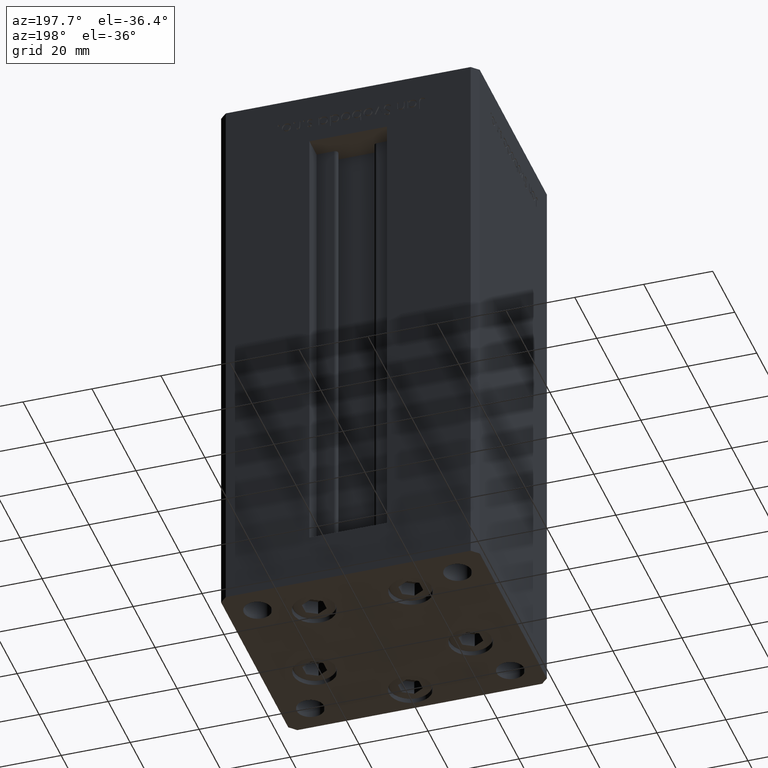
[diagram: clean part render]
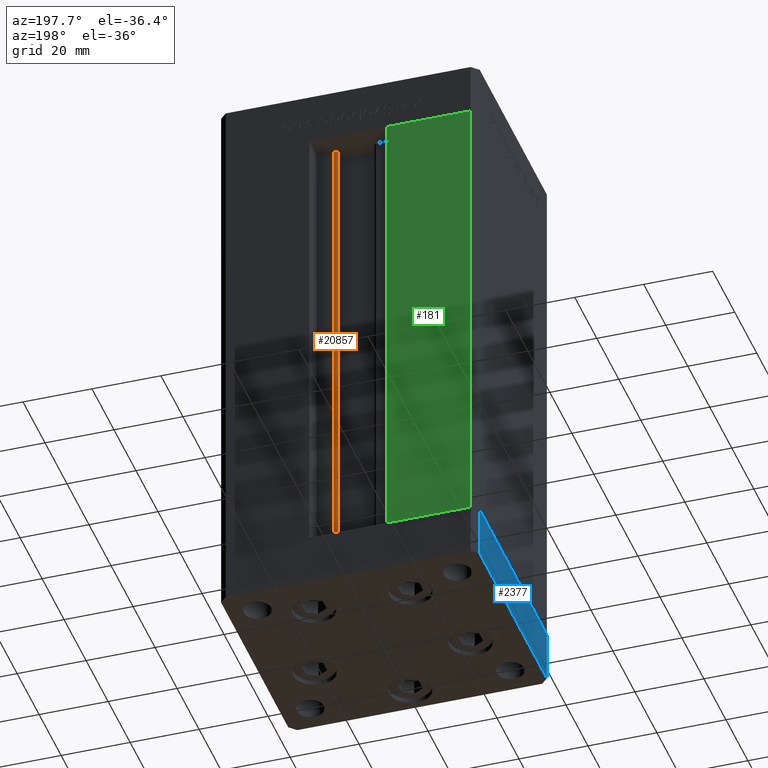
[diagram: same view with three faces highlighted in distinct colors, each labeled with its STEP entity id]
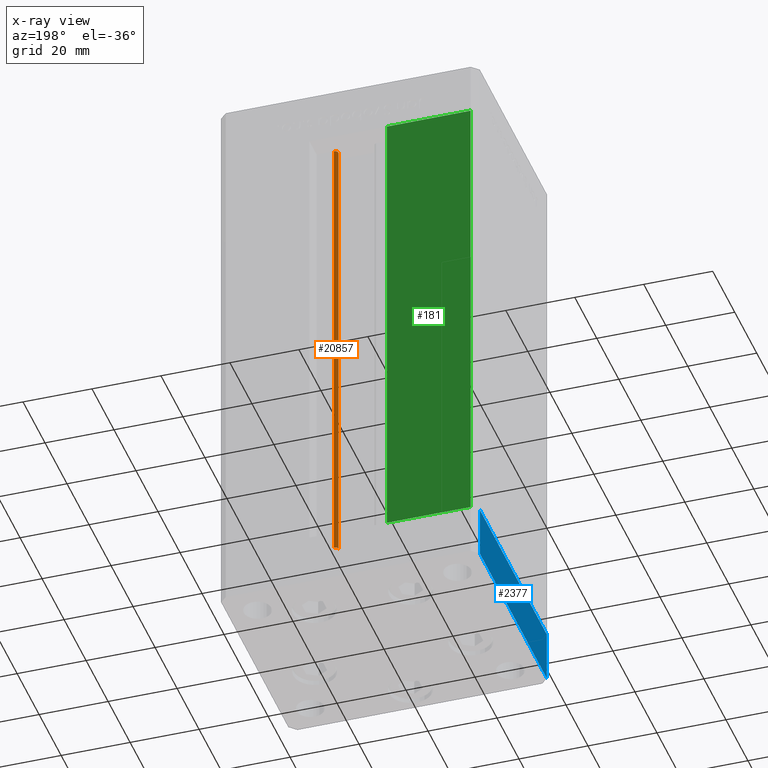
[diagram: x-ray of the same camera — body ghosted, the three highlighted faces saturated]
A machine part, auxiliary view with three faces highlighted in distinct colors.
The next image is the same camera in x-ray (body ghosted, the three faces saturated) — at least one of them is partly hidden behind the body in this view.
Their STEP definitions:

[orange] entity #20857 — the highlighted cylindrical surface (edge-blend (fillet) strip) has radius 0.9333 mm, axis along (0, 0, 1).
#2117 = EDGE_CURVE ( 'NONE', #26774, #39655, #47410, .T. ) ;
#2461 = EDGE_CURVE ( 'NONE', #39655, #33214, #25178, .T. ) ;
#5537 = AXIS2_PLACEMENT_3D ( 'NONE', #48494, #24500, #20547 ) ;
#6083 = DIRECTION ( 'NONE',  ( -0.000000000000000000, -0.000000000000000000, 1.000000000000000000 ) ) ;
#8797 = DIRECTION ( 'NONE',  ( 0.000000000000000000, 0.000000000000000000, -1.000000000000000000 ) ) ;
#8900 = FACE_OUTER_BOUND ( 'NONE', #9518, .T. ) ;
#9326 = CARTESIAN_POINT ( 'NONE',  ( 6.183333333334001480, 25.06666666666599141, 136.0000000000000000 ) ) ;
#9518 = EDGE_LOOP ( 'NONE', ( #38304, #51495, #26401, #27293 ) ) ;
#10561 = CARTESIAN_POINT ( 'NONE',  ( 6.183333333334001480, 25.99999999999999289, 0.000000000000000000 ) ) ;
#12370 = CIRCLE ( 'NONE', #35970, 0.9333333333340008142 ) ;
#17903 = VERTEX_POINT ( 'NONE', #25320 ) ;
#20547 = DIRECTION ( 'NONE',  ( 1.000000000000000000, 0.000000000000000000, 0.000000000000000000 ) ) ;
#20857 = ADVANCED_FACE ( 'NONE', ( #8900 ), #36871, .T. ) ;
#23162 = DIRECTION ( 'NONE',  ( 1.000000000000000000, 0.000000000000000000, 0.000000000000000000 ) ) ;
#24500 = DIRECTION ( 'NONE',  ( -0.000000000000000000, -0.000000000000000000, 1.000000000000000000 ) ) ;
#25178 = CIRCLE ( 'NONE', #41296, 0.9333333333340008142 ) ;
#25320 = CARTESIAN_POINT ( 'NONE',  ( 6.183333333334001480, 25.99999999999999289, 0.000000000000000000 ) ) ;
#26401 = ORIENTED_EDGE ( 'NONE', *, *, #2117, .T. ) ;
#26774 = VERTEX_POINT ( 'NONE', #34937 ) ;
#27293 = ORIENTED_EDGE ( 'NONE', *, *, #2461, .T. ) ;
#28116 = EDGE_CURVE ( 'NONE', #17903, #33214, #46208, .T. ) ;
#30049 = CARTESIAN_POINT ( 'NONE',  ( 5.375042956467948052, 24.59999999999899245, 136.0000000000000000 ) ) ;
#30804 = CARTESIAN_POINT ( 'NONE',  ( 6.183333333334001480, 25.06666666666599141, 0.000000000000000000 ) ) ;
#31906 = VECTOR ( 'NONE', #6083, 1000.000000000000000 ) ;
#33214 = VERTEX_POINT ( 'NONE', #34285 ) ;
#34285 = CARTESIAN_POINT ( 'NONE',  ( 6.183333333334001480, 25.99999999999999289, 136.0000000000000000 ) ) ;
#34937 = CARTESIAN_POINT ( 'NONE',  ( 5.375042956467947164, 24.59999999999899245, 0.000000000000000000 ) ) ;
#35526 = CARTESIAN_POINT ( 'NONE',  ( 5.375042956467947164, 24.59999999999899245, 0.000000000000000000 ) ) ;
#35970 = AXIS2_PLACEMENT_3D ( 'NONE', #30804, #46898, #23162 ) ;
#36871 = CYLINDRICAL_SURFACE ( 'NONE', #5537, 0.9333333333340008142 ) ;
#38304 = ORIENTED_EDGE ( 'NONE', *, *, #28116, .F. ) ;
#39655 = VERTEX_POINT ( 'NONE', #30049 ) ;
#40493 = DIRECTION ( 'NONE',  ( 1.000000000000000000, 0.000000000000000000, 0.000000000000000000 ) ) ;
#41296 = AXIS2_PLACEMENT_3D ( 'NONE', #9326, #8797, #40493 ) ;
#46208 = LINE ( 'NONE', #10561, #31906 ) ;
#46898 = DIRECTION ( 'NONE',  ( -0.000000000000000000, -0.000000000000000000, -1.000000000000000000 ) ) ;
#47346 = EDGE_CURVE ( 'NONE', #26774, #17903, #12370, .T. ) ;
#47410 = LINE ( 'NONE', #35526, #49690 ) ;
#48494 = CARTESIAN_POINT ( 'NONE',  ( 6.183333333334001480, 25.06666666666599141, 0.000000000000000000 ) ) ;
#49690 = VECTOR ( 'NONE', #51615, 1000.000000000000000 ) ;
#51495 = ORIENTED_EDGE ( 'NONE', *, *, #47346, .F. ) ;
#51615 = DIRECTION ( 'NONE',  ( -0.000000000000000000, -0.000000000000000000, 1.000000000000000000 ) ) ;

[blue] entity #2377 — the highlighted planar face has unit normal (-1, 0, 0).
#1658 = DIRECTION ( 'NONE',  ( 0.000000000000000000, 0.000000000000000000, 1.000000000000000000 ) ) ;
#1722 = CARTESIAN_POINT ( 'NONE',  ( 37.49999999999992184, 30.50000000000001066, -15.00000000000000000 ) ) ;
#2377 = ADVANCED_FACE ( 'NONE', ( #43659 ), #11726, .T. ) ;
#5451 = CARTESIAN_POINT ( 'NONE',  ( 37.50000000000001421, -30.50000000000000711, -15.00000000000000000 ) ) ;
#7240 = CARTESIAN_POINT ( 'NONE',  ( 37.50000000000001421, -30.50000000000000711, -15.00000000000000000 ) ) ;
#8824 = VERTEX_POINT ( 'NONE', #20050 ) ;
#9317 = LINE ( 'NONE', #32816, #30001 ) ;
#11200 = DIRECTION ( 'NONE',  ( 1.000000000000000000, 1.478780668045803018E-15, -0.000000000000000000 ) ) ;
#11469 = DIRECTION ( 'NONE',  ( -1.478780668045802821E-15, 1.000000000000000000, 0.000000000000000000 ) ) ;
#11726 = PLANE ( 'NONE',  #50440 ) ;
#12147 = EDGE_CURVE ( 'NONE', #8824, #26034, #28442, .T. ) ;
#12378 = EDGE_CURVE ( 'NONE', #45449, #8824, #37644, .T. ) ;
#15343 = ORIENTED_EDGE ( 'NONE', *, *, #44715, .T. ) ;
#15705 = CARTESIAN_POINT ( 'NONE',  ( 37.50000000000001421, -30.50000000000000711, -15.00000000000000000 ) ) ;
#17178 = CARTESIAN_POINT ( 'NONE',  ( 37.49999999999992184, 30.50000000000001066, 0.000000000000000000 ) ) ;
#18145 = DIRECTION ( 'NONE',  ( 0.000000000000000000, 0.000000000000000000, 1.000000000000000000 ) ) ;
#19320 = ORIENTED_EDGE ( 'NONE', *, *, #24173, .T. ) ;
#19564 = VECTOR ( 'NONE', #36357, 1000.000000000000000 ) ;
#20050 = CARTESIAN_POINT ( 'NONE',  ( 37.50000000000001421, -30.50000000000000711, 0.000000000000000000 ) ) ;
#24173 = EDGE_CURVE ( 'NONE', #45449, #29496, #31523, .T. ) ;
#25446 = VECTOR ( 'NONE', #18145, 1000.000000000000000 ) ;
#26034 = VERTEX_POINT ( 'NONE', #17178 ) ;
#28442 = LINE ( 'NONE', #28962, #19564 ) ;
#28962 = CARTESIAN_POINT ( 'NONE',  ( 37.50000000000001421, -30.50000000000000711, 0.000000000000000000 ) ) ;
#29496 = VERTEX_POINT ( 'NONE', #1722 ) ;
#30001 = VECTOR ( 'NONE', #1658, 1000.000000000000000 ) ;
#31523 = LINE ( 'NONE', #7240, #40249 ) ;
#32490 = ORIENTED_EDGE ( 'NONE', *, *, #12378, .F. ) ;
#32816 = CARTESIAN_POINT ( 'NONE',  ( 37.49999999999992184, 30.50000000000001066, -15.00000000000000000 ) ) ;
#34485 = ORIENTED_EDGE ( 'NONE', *, *, #12147, .F. ) ;
#35468 = DIRECTION ( 'NONE',  ( -1.478780668045803018E-15, 1.000000000000000000, 0.000000000000000000 ) ) ;
#35850 = CARTESIAN_POINT ( 'NONE',  ( 37.50000000000001421, -30.50000000000000711, -15.00000000000000000 ) ) ;
#36357 = DIRECTION ( 'NONE',  ( -1.478780668045802821E-15, 1.000000000000000000, 0.000000000000000000 ) ) ;
#37644 = LINE ( 'NONE', #5451, #25446 ) ;
#40082 = EDGE_LOOP ( 'NONE', ( #34485, #32490, #19320, #15343 ) ) ;
#40249 = VECTOR ( 'NONE', #11469, 1000.000000000000000 ) ;
#43659 = FACE_OUTER_BOUND ( 'NONE', #40082, .T. ) ;
#44715 = EDGE_CURVE ( 'NONE', #29496, #26034, #9317, .T. ) ;
#45449 = VERTEX_POINT ( 'NONE', #35850 ) ;
#50440 = AXIS2_PLACEMENT_3D ( 'NONE', #15705, #11200, #35468 ) ;

[green] entity #181 — the highlighted planar face has unit normal (0, -1, 0).
#181 = ADVANCED_FACE ( 'NONE', ( #40990 ), #49151, .F. ) ;
#1528 = CARTESIAN_POINT ( 'NONE',  ( -11.25000000000000178, 32.49999999999999289, 136.0000000000000000 ) ) ;
#1577 = LINE ( 'NONE', #5796, #1583 ) ;
#1583 = VECTOR ( 'NONE', #49868, 1000.000000000000000 ) ;
#2081 = VERTEX_POINT ( 'NONE', #3586 ) ;
#2555 = LINE ( 'NONE', #1528, #3555 ) ;
#3555 = VECTOR ( 'NONE', #49556, 1000.000000000000000 ) ;
#3586 = CARTESIAN_POINT ( 'NONE',  ( -35.50000000000000000, 32.49999999999999289, 0.000000000000000000 ) ) ;
#5796 = CARTESIAN_POINT ( 'NONE',  ( -11.25000000000000178, 32.49999999999999289, 0.000000000000000000 ) ) ;
#6991 = LINE ( 'NONE', #35219, #9764 ) ;
#6998 = LINE ( 'NONE', #31018, #11309 ) ;
#9764 = VECTOR ( 'NONE', #22337, 1000.000000000000000 ) ;
#11309 = VECTOR ( 'NONE', #31281, 1000.000000000000000 ) ;
#14760 = ORIENTED_EDGE ( 'NONE', *, *, #34012, .F. ) ;
#14763 = EDGE_CURVE ( 'NONE', #25759, #31471, #2555, .T. ) ;
#17373 = VERTEX_POINT ( 'NONE', #47554 ) ;
#17665 = AXIS2_PLACEMENT_3D ( 'NONE', #29638, #41249, #41773 ) ;
#21927 = ORIENTED_EDGE ( 'NONE', *, *, #40035, .T. ) ;
#22337 = DIRECTION ( 'NONE',  ( -1.000000000000000000, 0.000000000000000000, 0.000000000000000000 ) ) ;
#25136 = EDGE_LOOP ( 'NONE', ( #41179, #33247, #21927, #14760 ) ) ;
#25759 = VERTEX_POINT ( 'NONE', #34966 ) ;
#28760 = EDGE_CURVE ( 'NONE', #17373, #31471, #1577, .T. ) ;
#29638 = CARTESIAN_POINT ( 'NONE',  ( -11.25000000000000178, 32.49999999999999289, 136.0000000000000000 ) ) ;
#31018 = CARTESIAN_POINT ( 'NONE',  ( -35.50000000000000000, 32.49999999999999289, 136.0000000000000000 ) ) ;
#31281 = DIRECTION ( 'NONE',  ( -0.000000000000000000, -0.000000000000000000, -1.000000000000000000 ) ) ;
#31471 = VERTEX_POINT ( 'NONE', #47376 ) ;
#33247 = ORIENTED_EDGE ( 'NONE', *, *, #28760, .F. ) ;
#34012 = EDGE_CURVE ( 'NONE', #25759, #2081, #6998, .T. ) ;
#34966 = CARTESIAN_POINT ( 'NONE',  ( -35.50000000000000000, 32.49999999999999289, 136.0000000000000000 ) ) ;
#35219 = CARTESIAN_POINT ( 'NONE',  ( -11.25000000000000178, 32.49999999999999289, 0.000000000000000000 ) ) ;
#40035 = EDGE_CURVE ( 'NONE', #17373, #2081, #6991, .T. ) ;
#40990 = FACE_OUTER_BOUND ( 'NONE', #25136, .T. ) ;
#41179 = ORIENTED_EDGE ( 'NONE', *, *, #14763, .T. ) ;
#41249 = DIRECTION ( 'NONE',  ( 0.000000000000000000, -1.000000000000000000, 0.000000000000000000 ) ) ;
#41773 = DIRECTION ( 'NONE',  ( 0.000000000000000000, -0.000000000000000000, -1.000000000000000000 ) ) ;
#47376 = CARTESIAN_POINT ( 'NONE',  ( -11.25000000000000178, 32.49999999999999289, 136.0000000000000000 ) ) ;
#47554 = CARTESIAN_POINT ( 'NONE',  ( -11.25000000000000178, 32.49999999999999289, 0.000000000000000000 ) ) ;
#49151 = PLANE ( 'NONE',  #17665 ) ;
#49556 = DIRECTION ( 'NONE',  ( 1.000000000000000000, 0.000000000000000000, 0.000000000000000000 ) ) ;
#49868 = DIRECTION ( 'NONE',  ( -0.000000000000000000, -0.000000000000000000, 1.000000000000000000 ) ) ;